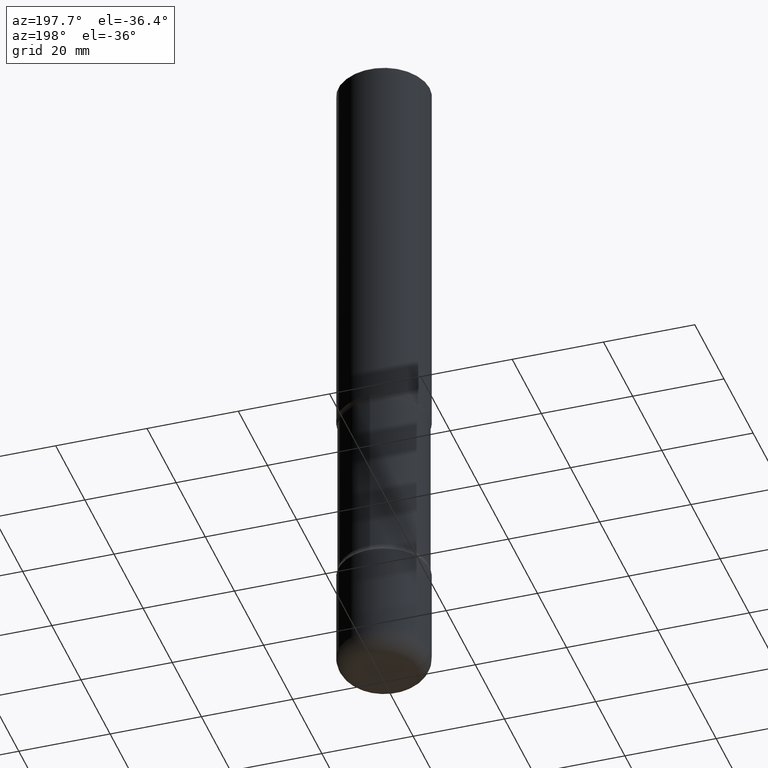
[diagram: clean part render]
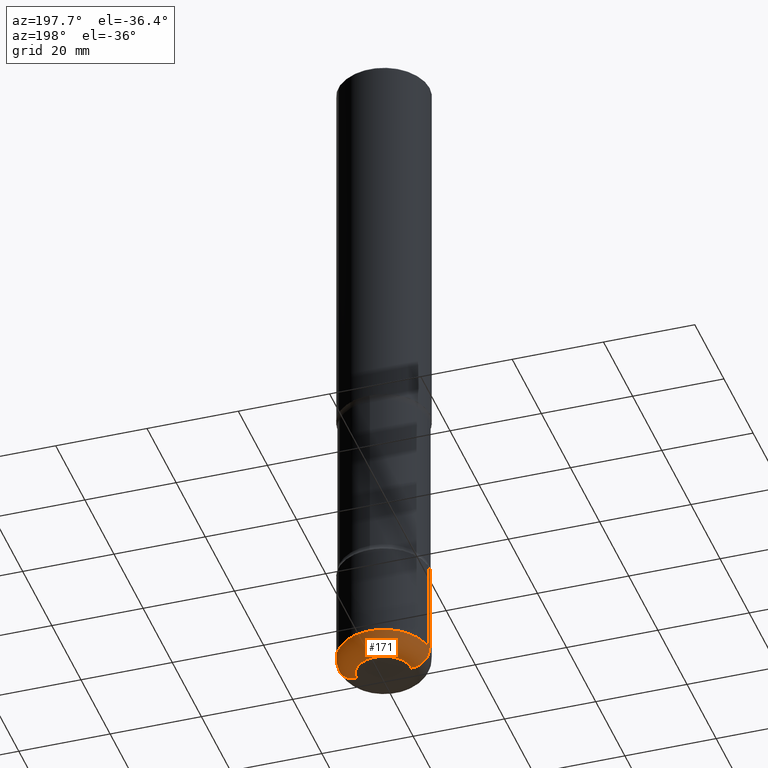
[diagram: same view with one face highlighted and labeled with its STEP entity id]
A machine part, auxiliary view. The second image highlights one B-rep face of the part: STEP entity #171.
In plain terms, the highlighted toroidal blend (fillet) surface has major radius 5.9995 mm and minor (blend) radius 4.0005 mm.
Its self-contained STEP definition (entity closure, byte-faithful):
#8 = CARTESIAN_POINT ( 'NONE',  ( -0.2362000000000002709, -1.810613454482786010E-14, -5.905499999999998195 ) ) ;
#36 = DIRECTION ( 'NONE',  ( -2.445468806185136597E-29, 3.491481338843145583E-15, 1.000000000000000000 ) ) ;
#49 = DIRECTION ( 'NONE',  ( 1.000000000000000000, -6.982962677686265133E-15, 0.000000000000000000 ) ) ;
#63 = ORIENTED_EDGE ( 'NONE', *, *, #151, .T. ) ;
#70 = EDGE_CURVE ( 'NONE', #225, #157, #462, .T. ) ;
#91 = DIRECTION ( 'NONE',  ( 1.000000000000000000, -6.982962677686266711E-15, 4.883557194083112340E-29 ) ) ;
#105 = EDGE_CURVE ( 'NONE', #529, #157, #216, .T. ) ;
#107 = CIRCLE ( 'NONE', #512, 0.1574999999999997791 ) ;
#122 = TOROIDAL_SURFACE ( 'NONE', #350, 0.2362000000000002986, 0.1574999999999997513 ) ;
#133 = DIRECTION ( 'NONE',  ( -2.445468806185136597E-29, 3.491481338843145583E-15, 1.000000000000000000 ) ) ;
#136 = VERTEX_POINT ( 'NONE', #441 ) ;
#138 = CARTESIAN_POINT ( 'NONE',  ( 0.2362000000000002986, -2.171841052013989672E-14, -5.747999999999999332 ) ) ;
#151 = EDGE_CURVE ( 'NONE', #136, #225, #364, .T. ) ;
#157 = VERTEX_POINT ( 'NONE', #487 ) ;
#171 = ADVANCED_FACE ( 'NONE', ( #437 ), #122, .T. ) ;
#186 = DIRECTION ( 'NONE',  ( -6.982962677686266711E-15, -1.000000000000000000, 3.491481338843145583E-15 ) ) ;
#201 = EDGE_CURVE ( 'NONE', #136, #529, #107, .T. ) ;
#203 = ORIENTED_EDGE ( 'NONE', *, *, #105, .F. ) ;
#207 = ORIENTED_EDGE ( 'NONE', *, *, #70, .T. ) ;
#216 = CIRCLE ( 'NONE', #409, 0.3937000000000002164 ) ;
#218 = DIRECTION ( 'NONE',  ( 7.105427357601001859E-15, 1.000000000000000000, -3.491481338843145583E-15 ) ) ;
#219 = CARTESIAN_POINT ( 'NONE',  ( 1.405655469795216198E-28, -2.006903473567039704E-14, -5.747999999999999332 ) ) ;
#220 = AXIS2_PLACEMENT_3D ( 'NONE', #516, #218, #426 ) ;
#225 = VERTEX_POINT ( 'NONE', #8 ) ;
#229 = DIRECTION ( 'NONE',  ( 1.000000000000000000, -6.982962677686272233E-15, 0.000000000000000000 ) ) ;
#247 = DIRECTION ( 'NONE',  ( 1.000000000000000000, -6.982962677686265133E-15, 0.000000000000000000 ) ) ;
#266 = DIRECTION ( 'NONE',  ( -2.445468806185136597E-29, 3.491481338843145583E-15, 1.000000000000000000 ) ) ;
#276 = CARTESIAN_POINT ( 'NONE',  ( 0.3937000000000001609, -2.281822714187548341E-14, -5.747999999999999332 ) ) ;
#350 = AXIS2_PLACEMENT_3D ( 'NONE', #219, #133, #91 ) ;
#364 = CIRCLE ( 'NONE', #550, 0.2362000000000002709 ) ;
#376 = ORIENTED_EDGE ( 'NONE', *, *, #201, .F. ) ;
#395 = CARTESIAN_POINT ( 'NONE',  ( 1.444171603492631822E-28, -2.061894304653818881E-14, -5.905499999999998195 ) ) ;
#396 = EDGE_LOOP ( 'NONE', ( #63, #207, #203, #376 ) ) ;
#409 = AXIS2_PLACEMENT_3D ( 'NONE', #514, #36, #247 ) ;
#426 = DIRECTION ( 'NONE',  ( -1.000000000000000000, 7.105427357600993970E-15, 0.000000000000000000 ) ) ;
#437 = FACE_OUTER_BOUND ( 'NONE', #396, .T. ) ;
#441 = CARTESIAN_POINT ( 'NONE',  ( 0.2362000000000002709, -2.226831883100768849E-14, -5.905499999999998195 ) ) ;
#462 = CIRCLE ( 'NONE', #220, 0.1574999999999997791 ) ;
#487 = CARTESIAN_POINT ( 'NONE',  ( -0.3937000000000001609, -1.727162798498288305E-14, -5.747999999999999332 ) ) ;
#512 = AXIS2_PLACEMENT_3D ( 'NONE', #138, #186, #229 ) ;
#514 = CARTESIAN_POINT ( 'NONE',  ( 1.405655469795216198E-28, -2.006903473567039704E-14, -5.747999999999999332 ) ) ;
#516 = CARTESIAN_POINT ( 'NONE',  ( -0.2362000000000002986, -1.839073279380504223E-14, -5.747999999999999332 ) ) ;
#529 = VERTEX_POINT ( 'NONE', #276 ) ;
#550 = AXIS2_PLACEMENT_3D ( 'NONE', #395, #266, #49 ) ;